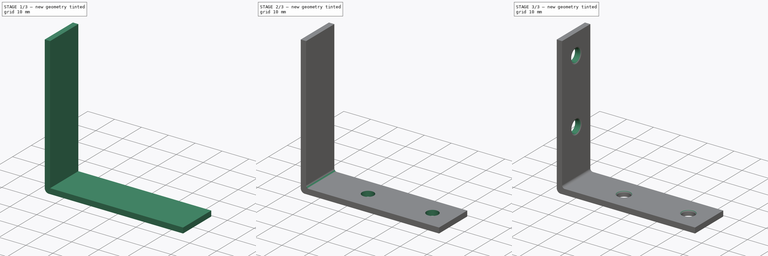
[diagram: build sequence overview — one tinted view per stage of 3, left to right]
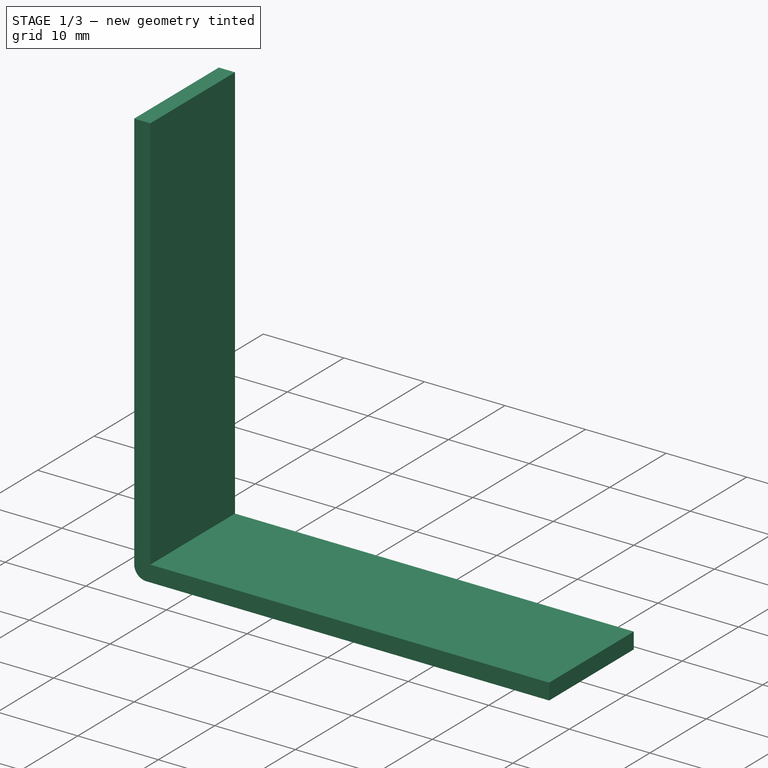
[diagram: stage 1 of 3 — iso view after this stage's code; geometry added in this stage tinted green]
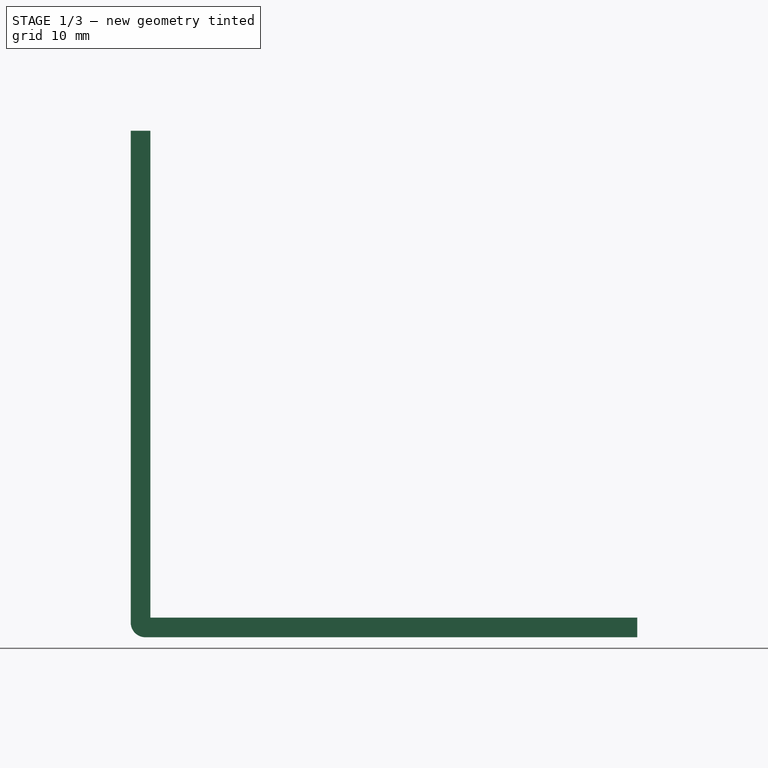
[diagram: stage 1 of 3 — front view after this stage's code; geometry added in this stage tinted green]
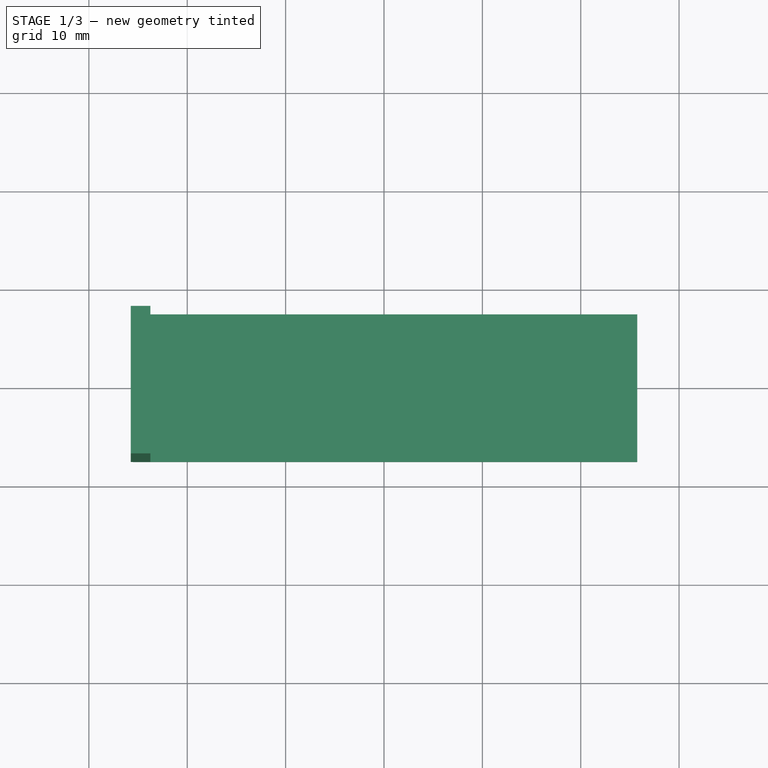
[diagram: stage 1 of 3 — top view after this stage's code; geometry added in this stage tinted green]
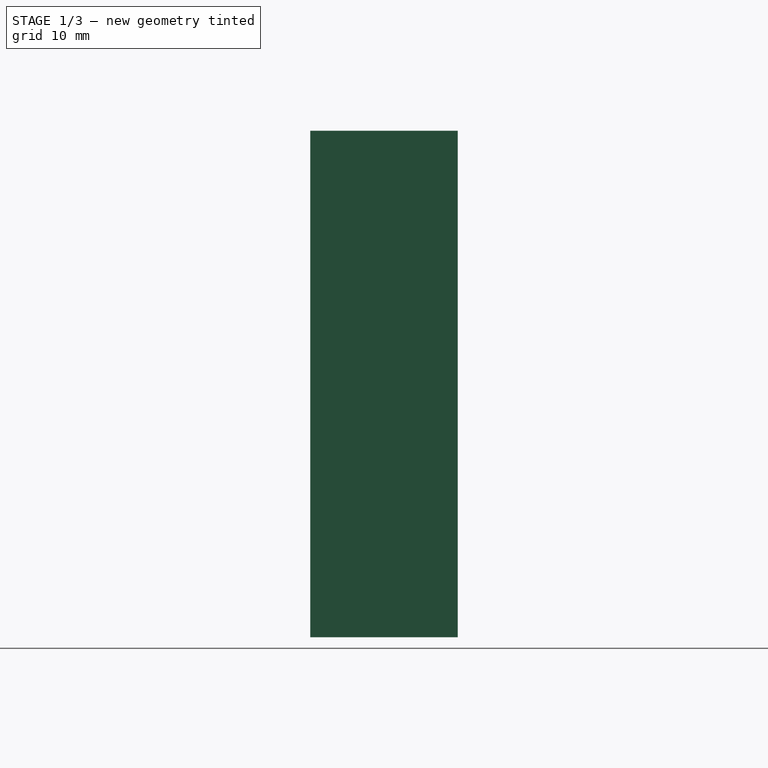
[diagram: stage 1 of 3 — right view after this stage's code; geometry added in this stage tinted green]
FCSTD DOCUMENT  (FreeCAD 0.17R13541 (Git))
Label: LProfile
License: All rights reserved
LicenseURL: http://en.wikipedia.org/wiki/All_rights_reserved
objects: Sketcher::SketchObject×4, PartDesign::Fillet×4, PartDesign::Pad×2, PartDesign::Pocket×2, PartDesign::Body×1
note: 17 computed .brp shape members not serialized (recipe doc carries the construction recipe); baked Part::Feature solids carry a one-line shape summary decoded from their .brp

FEATURE [Sketcher::SketchObject] Sketch
  MapMode = 5
  Support = -> [XY_Plane]
  sketch-geometry (4):
    g0: LineSegment StartX=-25.75 StartY=7.5 StartZ=0 EndX=25.75 EndY=7.5 EndZ=0
    g1: LineSegment StartX=25.75 StartY=7.5 StartZ=0 EndX=25.75 EndY=-7.5 EndZ=0
    g2: LineSegment StartX=25.75 StartY=-7.5 StartZ=0 EndX=-25.75 EndY=-7.5 EndZ=0
    g3: LineSegment StartX=-25.75 StartY=-7.5 StartZ=0 EndX=-25.75 EndY=7.5 EndZ=0
  constraints (11):
    c: Coincident(g0,g1)
    c: Coincident(g1,g2)
    c: Coincident(g2,g3)
    c: Coincident(g3,g0)
    c: Horizontal(g0)
    c: Horizontal(g2)
    c: Vertical(g1)
    c: Vertical(g3)
    c: DistanceX(g0,g0) = 51.5
    c: DistanceY(g1,g1) = 15
    c: Symmetric(g0,g1,g-1)
FEATURE [PartDesign::Pad] Pad
  Length = 2
  Length2 = 100
  Profile = -> Sketch
  Type = 0
FEATURE [Sketcher::SketchObject] Sketch001
  ExternalGeometry = -> [Pad]
  MapMode = 5
  Placement = pos=(0,0,2) rot=(0,0,1;0rad)
  Support = -> [Pad]
  sketch-geometry (5):
    g0: LineSegment StartX=-25.75 StartY=7.5 StartZ=0 EndX=-23.75 EndY=7.5 EndZ=0
    g1: LineSegment StartX=-23.75 StartY=7.5 StartZ=0 EndX=-23.75 EndY=-7.5 EndZ=0
    g2: LineSegment StartX=-23.75 StartY=-7.5 StartZ=0 EndX=-25.75 EndY=-7.5 EndZ=0
    g3: LineSegment StartX=-25.75 StartY=-7.5 StartZ=0 EndX=-25.75 EndY=7.5 EndZ=0
    g4: GeomPoint X=-11 Y=7.5 Z=0
  constraints (13):
    c: Coincident(g0,g1)
    c: Coincident(g1,g2)
    c: Coincident(g2,g3)
    c: Coincident(g3,g0)
    c: Horizontal(g0)
    c: Horizontal(g2)
    c: Vertical(g1)
    c: Vertical(g3)
    c: PointOnObject(g0,g-3)
    c: PointOnObject(g1,g-5)
    c: PointOnObject(g4,g-4)
    c: DistanceY(g0,g4) = 0
    c: DistanceX(g2,g2) = 2
FEATURE [PartDesign::Pad] Pad001
  BaseFeature = -> Pad
  Length = 49.5
  Length2 = 100
  Profile = -> Sketch001
  Type = 0
FEATURE [PartDesign::Fillet] Fillet
  Base = -> Pad001 [Edge7]
  BaseFeature = -> Pad001
  Radius = 1.5
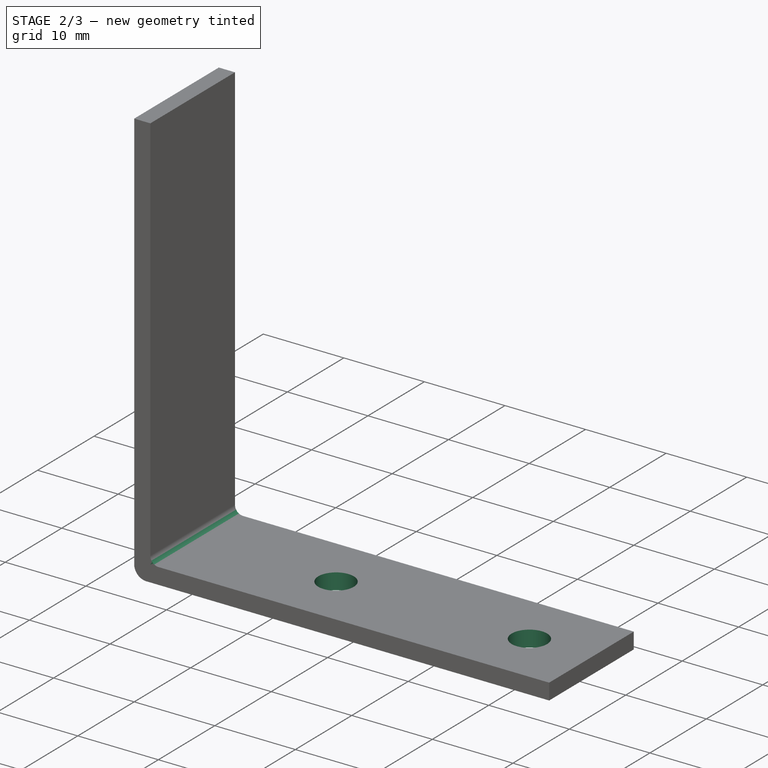
[diagram: stage 2 of 3 — iso view after this stage's code; geometry added in this stage tinted green]
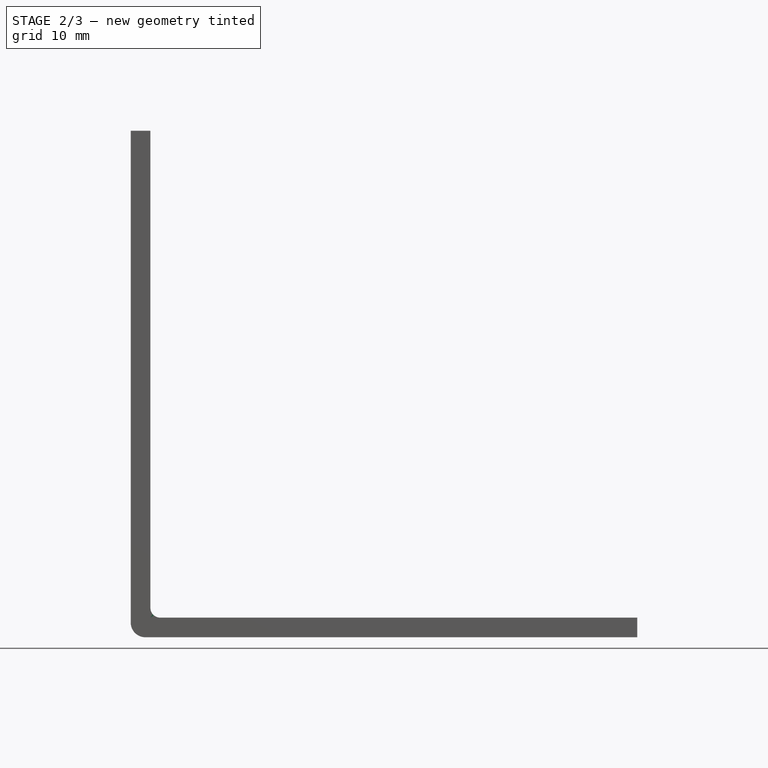
[diagram: stage 2 of 3 — front view after this stage's code; geometry added in this stage tinted green]
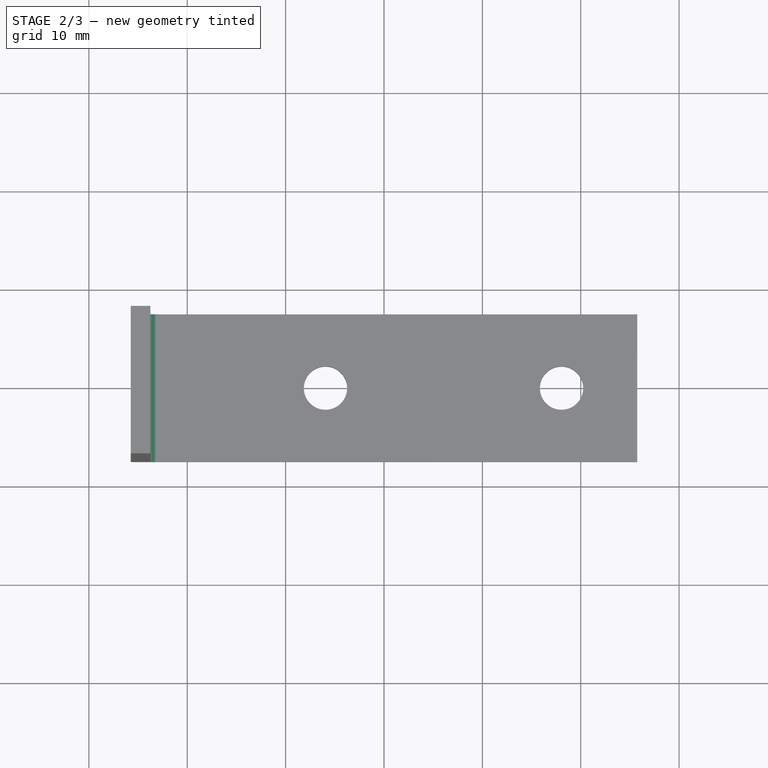
[diagram: stage 2 of 3 — top view after this stage's code; geometry added in this stage tinted green]
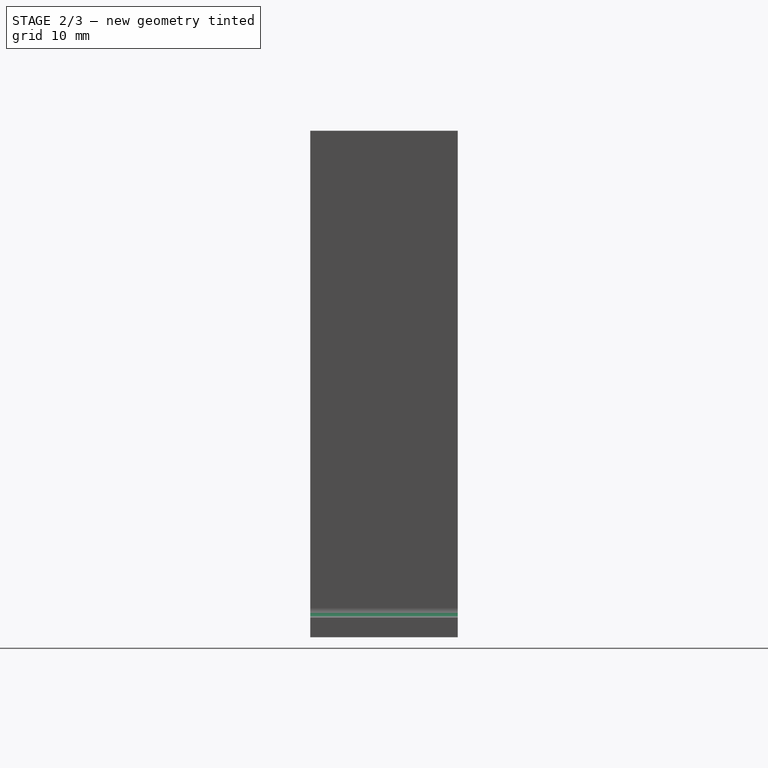
[diagram: stage 2 of 3 — right view after this stage's code; geometry added in this stage tinted green]
FEATURE [PartDesign::Fillet] Fillet001
  Base = -> Fillet [Edge17]
  BaseFeature = -> Fillet
  Radius = 1
FEATURE [Sketcher::SketchObject] Sketch002
  ExternalGeometry = -> [Fillet001]
  MapMode = 5
  Placement = pos=(0,0,2) rot=(0,0,1;0rad)
  Support = -> [Fillet001]
  sketch-geometry (7):
    g0: Circle CenterX=18.05 CenterY=0 CenterZ=0 NormalX=0 NormalY=0 NormalZ=1 AngleXU=0 Radius=2.2
    g1: LineSegment [constr] StartX=18.05 StartY=7.5 StartZ=0 EndX=18.05 EndY=0 EndZ=0
    g2: LineSegment [constr] StartX=18.05 StartY=0 StartZ=0 EndX=18.05 EndY=-7.5 EndZ=0
    g3: GeomPoint X=25.75 Y=-3.56525 Z=0
    g4: GeomPoint X=-8 Y=7.5 Z=0
    g5: GeomPoint X=-8.63892 Y=-7.5 Z=0
    g6: Circle CenterX=-5.95 CenterY=0 CenterZ=0 NormalX=0 NormalY=0 NormalZ=1 AngleXU=0 Radius=2.2
  constraints (15):
    c: Radius(g0) = 2.2
    c: PointOnObject(g1,g-3)
    c: Coincident(g1,g0)
    c: Coincident(g2,g0)
    c: PointOnObject(g2,g-4)
    c: Vertical(g2)
    c: Equal(g1,g2)
    c: Vertical(g1)
    c: PointOnObject(g3,g-5)
    c: DistanceX(g0,g3) = 7.7
    c: PointOnObject(g4,g-3)
    c: PointOnObject(g5,g-4)
    c: PointOnObject(g6,g-1)
    c: Radius(g6) = 2.2
    c: DistanceX(g6,g0) = 24
FEATURE [PartDesign::Pocket] Pocket
  BaseFeature = -> Fillet001
  Length = 5
  Length2 = 100
  Profile = -> Sketch002
  Type = 1
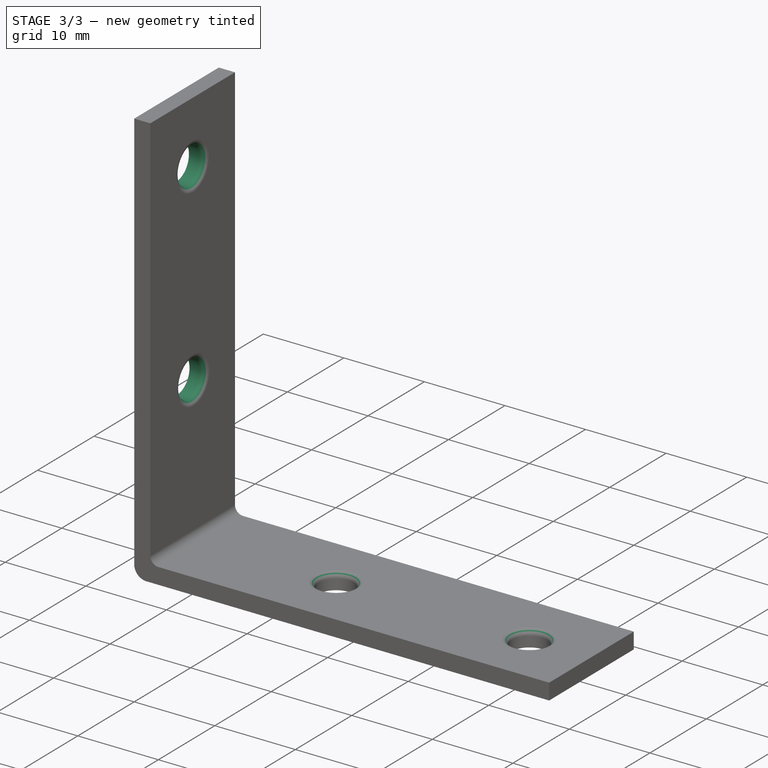
[diagram: stage 3 of 3 — iso view after this stage's code; geometry added in this stage tinted green]
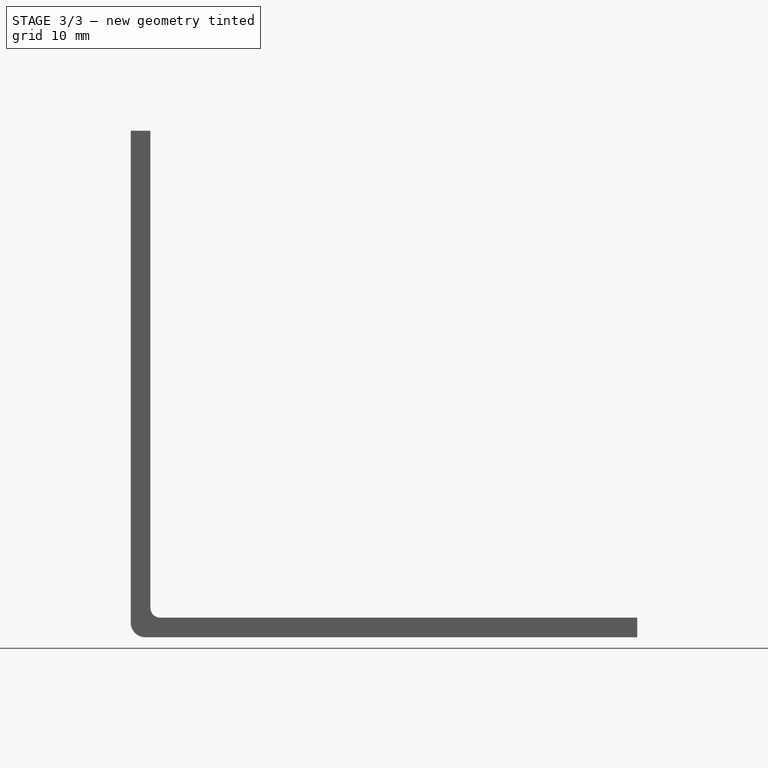
[diagram: stage 3 of 3 — front view after this stage's code; geometry added in this stage tinted green]
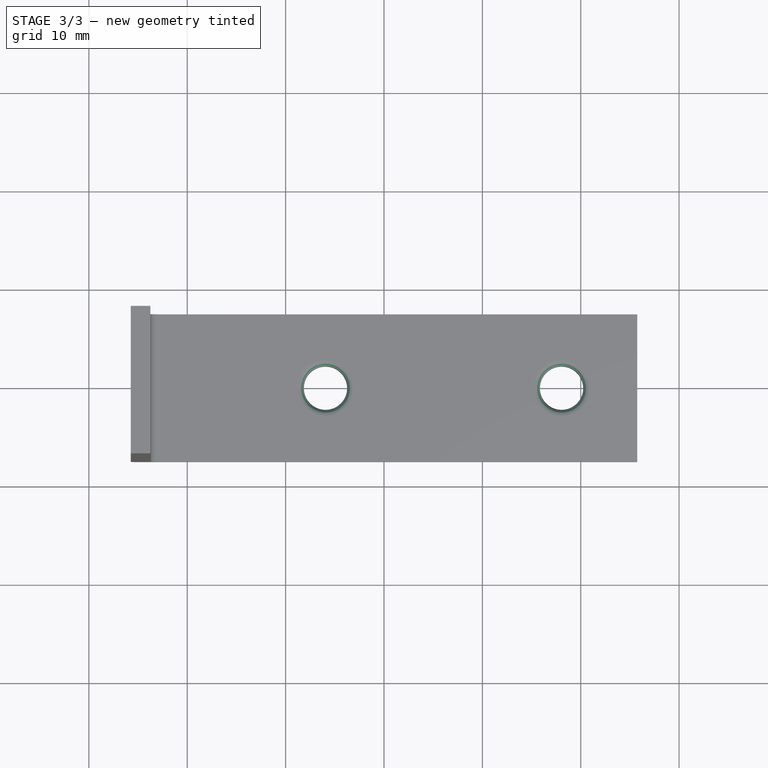
[diagram: stage 3 of 3 — top view after this stage's code; geometry added in this stage tinted green]
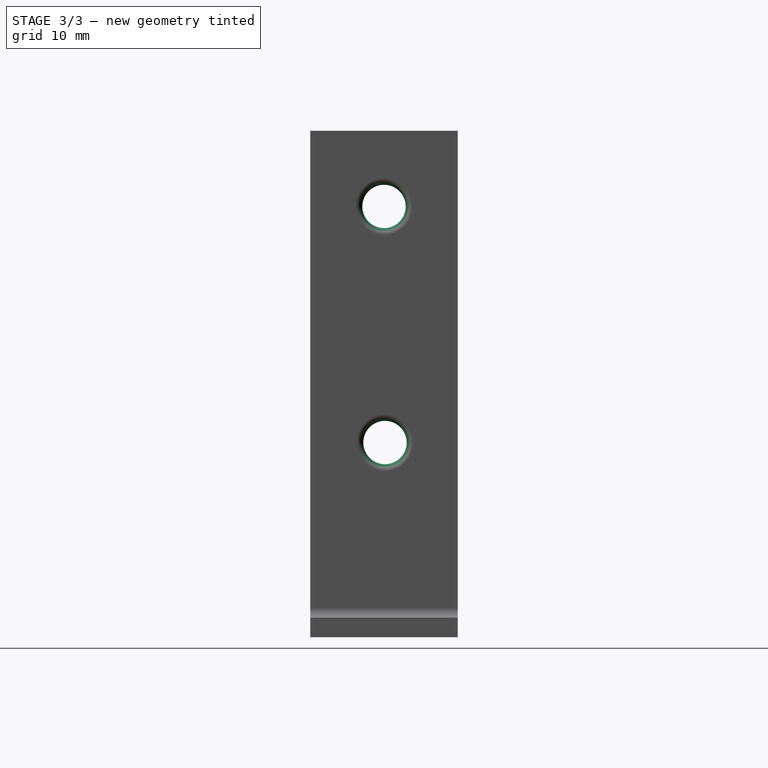
[diagram: stage 3 of 3 — right view after this stage's code; geometry added in this stage tinted green]
FEATURE [PartDesign::Fillet] Fillet002
  Base = -> Pocket [Edge12,Edge11]
  BaseFeature = -> Pocket
  Radius = 0.7
FEATURE [Sketcher::SketchObject] Sketch003
  ExternalGeometry = -> [Fillet002]
  MapMode = 5
  Placement = pos=(-23.75,0,0) rot=(0.57735,0.57735,0.57735;2.0944rad)
  Support = -> [Fillet002]
  sketch-geometry (9):
    g0: Circle CenterX=0 CenterY=43.8 CenterZ=0 NormalX=0 NormalY=0 NormalZ=1 AngleXU=0 Radius=2.2
    g1: GeomPoint X=-7.5 Y=43.8 Z=0
    g2: GeomPoint X=-3.67932 Y=51.5 Z=0
    g3: GeomPoint X=7.5 Y=43.8 Z=0
    g4: LineSegment [constr] StartX=-7.5 StartY=43.8 StartZ=0 EndX=0 EndY=43.8 EndZ=0
    g5: LineSegment [constr] StartX=7.5 StartY=43.8 StartZ=0 EndX=0 EndY=43.8 EndZ=0
    g6: Circle CenterX=0.10123 CenterY=19.8 CenterZ=0 NormalX=0 NormalY=0 NormalZ=1 AngleXU=0 Radius=2.2
    g7: LineSegment [constr] StartX=0.10123 StartY=19.8 StartZ=0 EndX=-7.5 EndY=19.8 EndZ=0
    g8: LineSegment [constr] StartX=-0.10123 StartY=31.6344 StartZ=0 EndX=7.5 EndY=31.6344 EndZ=0
  constraints (20):
    c: Radius(g0) = 2.2
    c: PointOnObject(g1,g-3)
    c: PointOnObject(g2,g-4)
    c: PointOnObject(g3,g-5)
    c: Coincident(g4,g1)
    c: Coincident(g4,g0)
    c: Coincident(g5,g3)
    c: Coincident(g5,g0)
    c: Equal(g4,g5)
    c: Horizontal(g4)
    c: Horizontal(g5)
    c: DistanceY(g0,g2) = 7.7
    c: Radius(g6) = 2.2
    c: Coincident(g7,g6)
    c: PointOnObject(g7,g-3)
    c: PointOnObject(g8,g-5)
    c: Equal(g7,g8)
    c: Horizontal(g7)
    c: Horizontal(g8)
    c: DistanceY(g6,g0) = 24
FEATURE [PartDesign::Pocket] Pocket001
  BaseFeature = -> Fillet002
  Length = 5
  Length2 = 100
  Profile = -> Sketch003
  Type = 1
FEATURE [PartDesign::Fillet] Fillet003
  Base = -> Pocket001 [Edge40,Edge41]
  BaseFeature = -> Pocket001
  Radius = 0.7
FEATURE [PartDesign::Body] Body
  Group = -> [Sketch,Pad,Sketch001,Pad001,Fillet,Fillet001,Sketch002,Pocket,Fillet002,Sketch003,Pocket001,Fillet003]
  Origin = -> Origin
  Tip = -> Fillet003
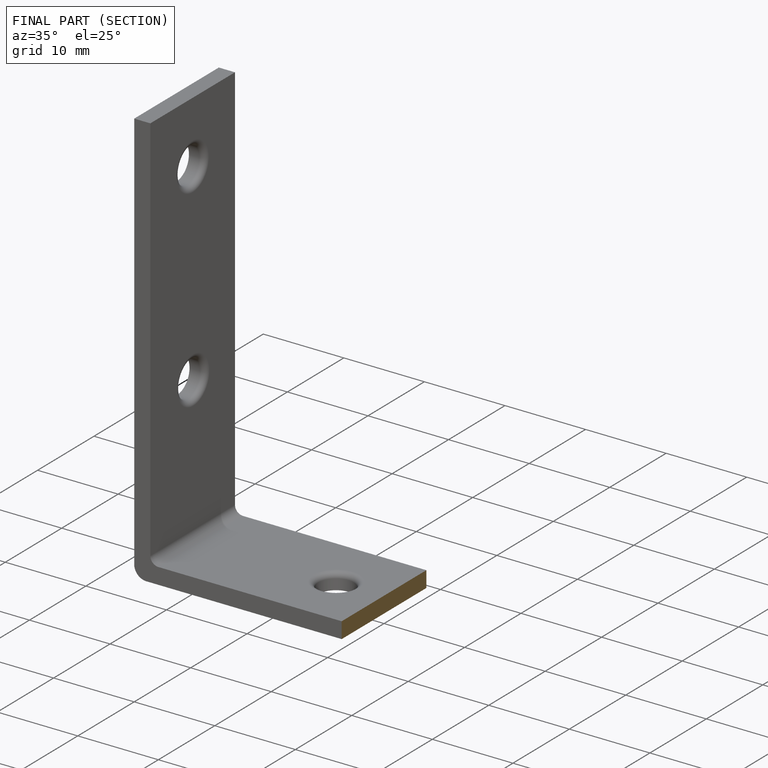
[diagram: finished part — half-section view (interior)]
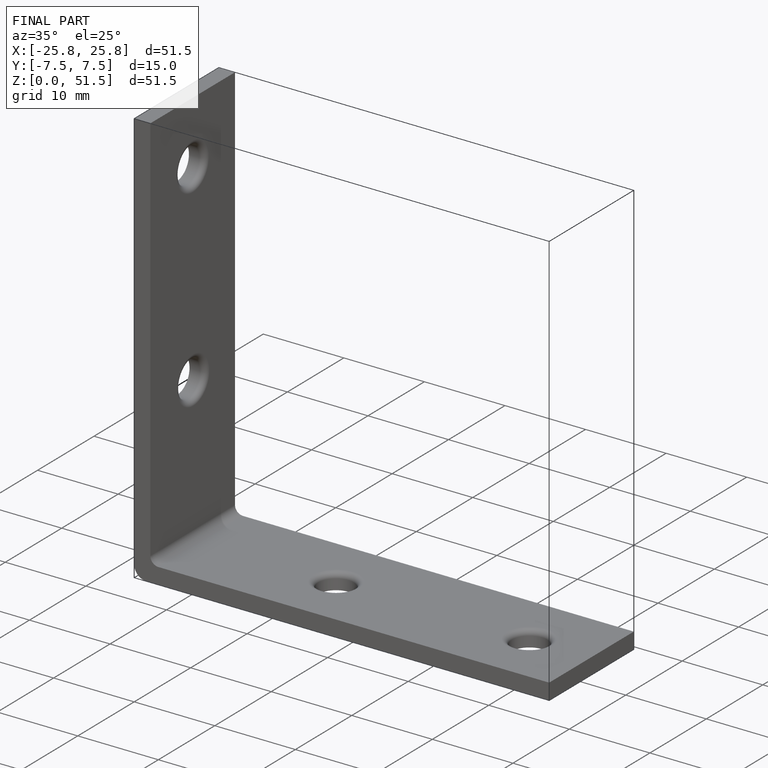
[diagram: finished part — iso view with bounding-box wireframe]
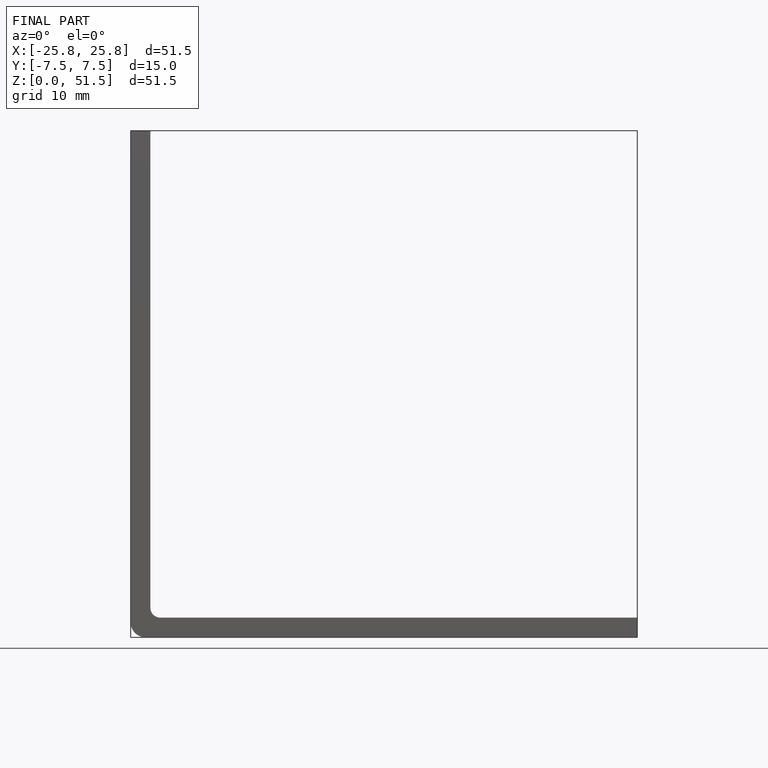
[diagram: finished part — front view with bounding-box wireframe]
